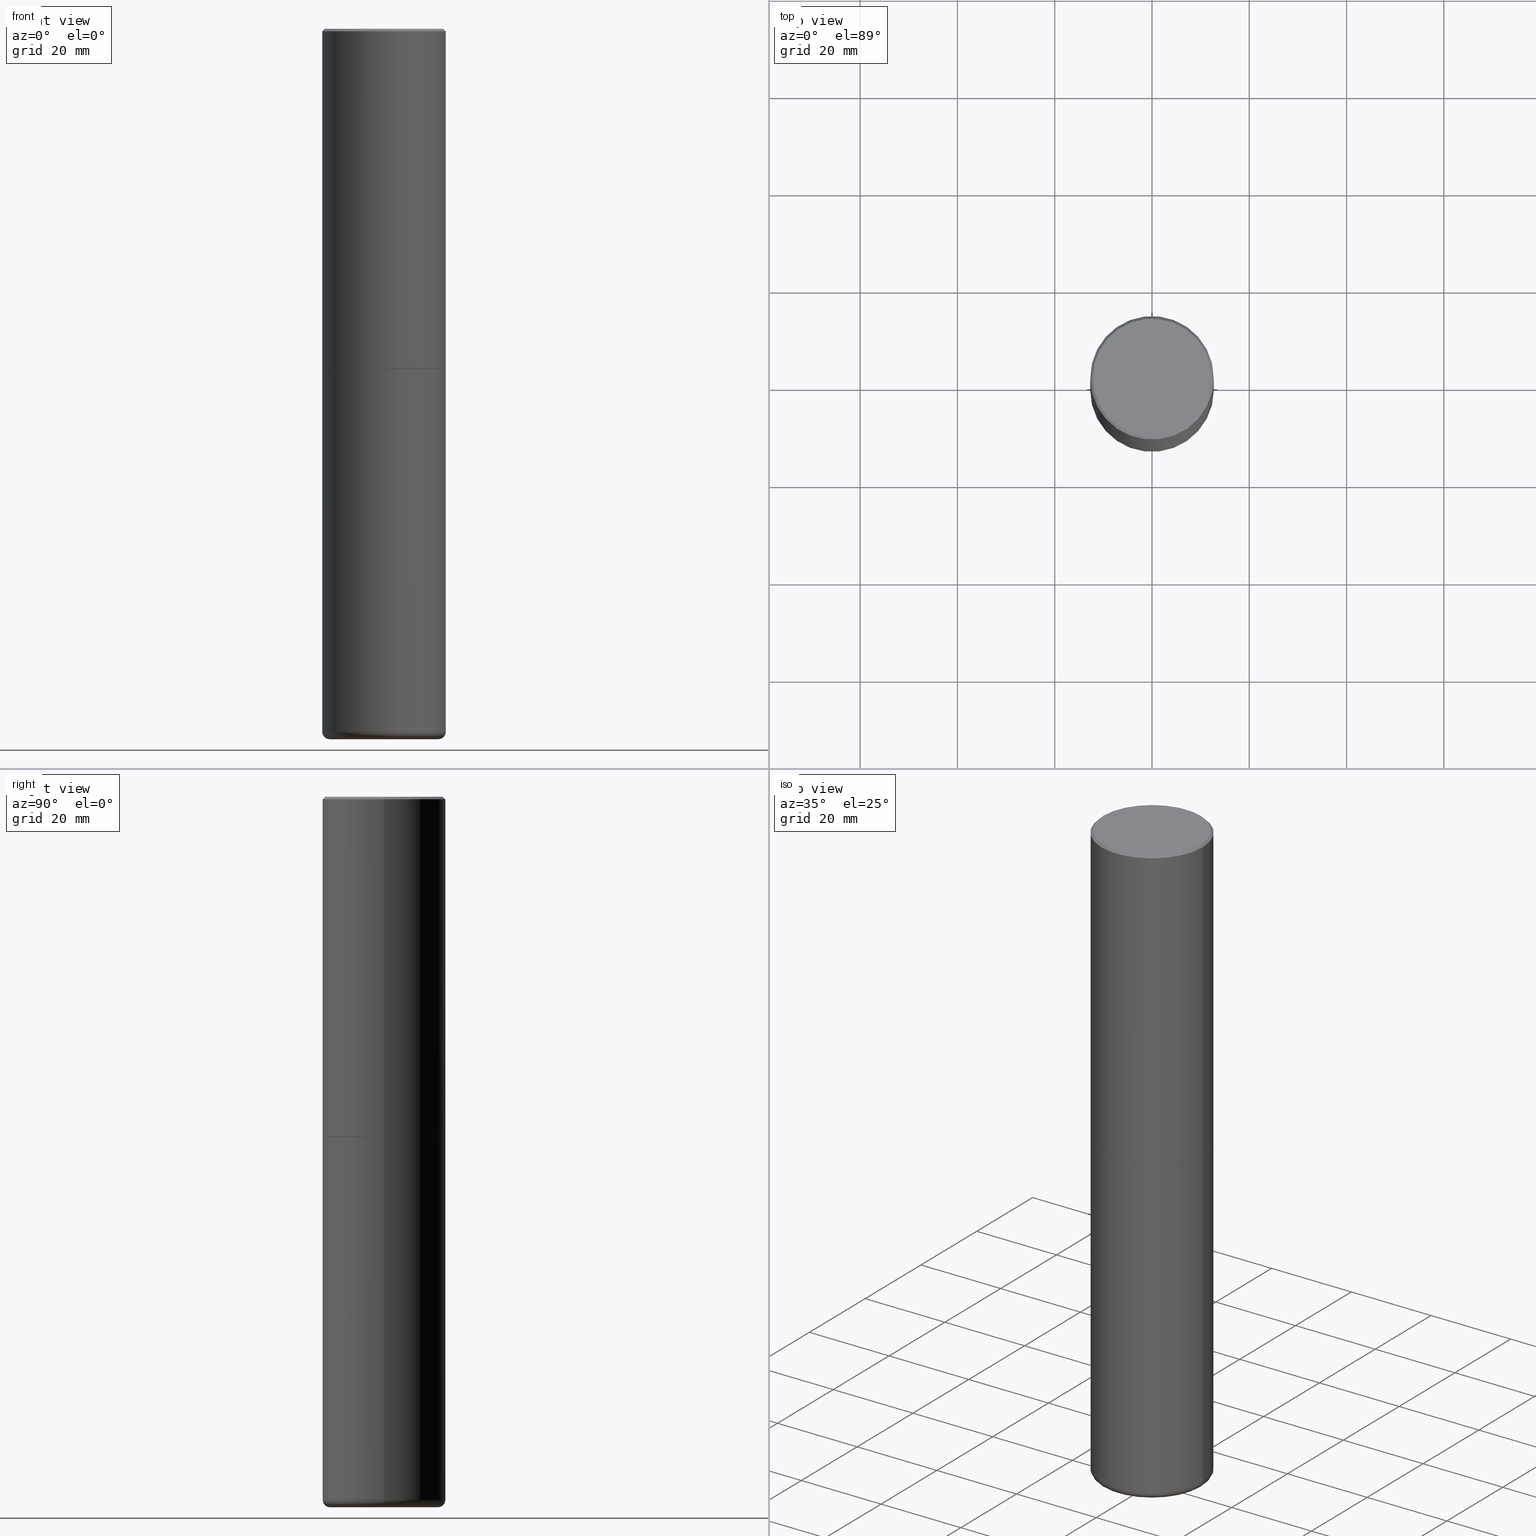
[diagram: canonical four-view strip — front | top / right | iso, engineering-drawing reading convention]
A machine part, canonical four-view strip (front | top / right | iso — engineering-drawing reading convention). The complete STEP part file that produces these views, byte-faithful:
ISO-10303-21;
HEADER;
FILE_DESCRIPTION (( 'STEP AP203' ),
    '1' );
FILE_NAME ('77317.STEP',
    '2024-03-06T17:03:25',
    ( '' ),
    ( '' ),
    'SwSTEP 2.0',
    'SolidWorks 2023',
    '' );
FILE_SCHEMA (( 'CONFIG_CONTROL_DESIGN' ));
ENDSEC;

DATA;
#1 = DIRECTION ( 'NONE',  ( -2.445468806185136877E-29, 3.491481338843145188E-15, 1.000000000000000000 ) ) ;
#2 = PERSON_AND_ORGANIZATION_ROLE ( 'design_owner' ) ;
#3 = CLOSED_SHELL ( 'NONE', ( #229, #74, #30, #265, #250, #293 ) ) ;
#4 = DIMENSIONAL_EXPONENTS ( 1.000000000000000000, 0.000000000000000000, 0.000000000000000000, 0.000000000000000000, 0.000000000000000000, 0.000000000000000000, 0.000000000000000000 ) ;
#5 = CIRCLE ( 'NONE', #327, 0.06000000000000045575 ) ;
#6 = DIRECTION ( 'NONE',  ( 0.7071067811865457964, -7.319954787623249734E-15, -0.7071067811865492381 ) ) ;
#7 = DIRECTION ( 'NONE',  ( -1.000000000000000000, 6.982962677686265922E-15, 0.000000000000000000 ) ) ;
#8 = PERSON ( 'UNSPECIFIED', 'UNSPECIFIED', 'UNSPECIFIED', ('UNSPECIFIED'), ('UNSPECIFIED'), ('UNSPECIFIED') ) ;
#9 = DIRECTION ( 'NONE',  ( 1.000000000000000000, -6.982962677686264344E-15, 4.883557194083111780E-29 ) ) ;
#10 = VECTOR ( 'NONE', #105, 39.37007874015748143 ) ;
#11 = CARTESIAN_POINT ( 'NONE',  ( 4.089694968291764333E-29, -3.435613221068401065E-14, -5.750000000000000888 ) ) ;
#12 = ORIENTED_EDGE ( 'NONE', *, *, #122, .T. ) ;
#13 = DIRECTION ( 'NONE',  ( -1.000000000000000000, 6.982962677686265922E-15, -4.876176775795935793E-29 ) ) ;
#14 = CC_DESIGN_DATE_AND_TIME_ASSIGNMENT ( #259, #227, ( #163 ) ) ;
#15 = DIRECTION ( 'NONE',  ( -2.445468806185136597E-29, 3.491481338843145583E-15, 1.000000000000000000 ) ) ;
#16 = FACE_OUTER_BOUND ( 'NONE', #190, .T. ) ;
#17 = CC_DESIGN_APPROVAL ( #266, ( #163 ) ) ;
#18 = APPROVAL ( #357, 'UNSPECIFIED' ) ;
#19 = DIRECTION ( 'NONE',  ( -1.000000000000000000, 6.982962677686265922E-15, -4.876176775795935793E-29 ) ) ;
#20 = DIRECTION ( 'NONE',  ( -2.445468806185136597E-29, 3.491481338843145583E-15, 1.000000000000000000 ) ) ;
#21 = DIRECTION ( 'NONE',  ( -2.445468806185136597E-29, 3.491481338843145583E-15, 1.000000000000000000 ) ) ;
#22 = ORIENTED_EDGE ( 'NONE', *, *, #318, .F. ) ;
#23 = CARTESIAN_POINT ( 'NONE',  ( 6.725039217009123399E-29, -9.601573681818648281E-15, -2.749999999999999556 ) ) ;
#24 = EDGE_LOOP ( 'NONE', ( #260, #114, #286, #185 ) ) ;
#25 = PERSON_AND_ORGANIZATION ( #8, #201 ) ;
#26 = ORIENTED_EDGE ( 'NONE', *, *, #69, .T. ) ;
#27 = CARTESIAN_POINT ( 'NONE',  ( -0.4989999999999999991, -6.055965430375748360E-15, -2.749999999999999556 ) ) ;
#28 = PERSON_AND_ORGANIZATION_ROLE ( 'design_supplier' ) ;
#29 = LINE ( 'NONE', #156, #238 ) ;
#30 = ADVANCED_FACE ( 'NONE', ( #106 ), #305, .F. ) ;
#31 = VERTEX_POINT ( 'NONE', #276 ) ;
#32 = AXIS2_PLACEMENT_3D ( 'NONE', #143, #397, #240 ) ;
#33 = AXIS2_PLACEMENT_3D ( 'NONE', #91, #88, #314 ) ;
#34 = CC_DESIGN_PERSON_AND_ORGANIZATION_ASSIGNMENT ( #120, #28, ( #262 ) ) ;
#35 = PERSON_AND_ORGANIZATION ( #8, #201 ) ;
#36 = APPROVAL_DATE_TIME ( #350, #18 ) ;
#37 = DIRECTION ( 'NONE',  ( -2.445468806185136877E-29, 3.491481338843145188E-15, 1.000000000000000000 ) ) ;
#38 = FACE_OUTER_BOUND ( 'NONE', #127, .T. ) ;
#39 = VECTOR ( 'NONE', #285, 39.37007874015748143 ) ;
#40 = DIRECTION ( 'NONE',  ( 7.105427357601001859E-15, 1.000000000000000000, -3.491481338843145583E-15 ) ) ;
#41 = DIRECTION ( 'NONE',  ( -2.445468806185136597E-29, 3.491481338843145583E-15, 1.000000000000000000 ) ) ;
#42 = DIRECTION ( 'NONE',  ( -2.445468806185136597E-29, 3.491481338843145583E-15, 1.000000000000000000 ) ) ;
#43 = VECTOR ( 'NONE', #37, 39.37007874015748143 ) ;
#44 = DIRECTION ( 'NONE',  ( 1.000000000000000000, -6.982962677686262766E-15, 0.000000000000000000 ) ) ;
#45 = DIRECTION ( 'NONE',  ( 2.438088387897960049E-29, -3.491481338843145188E-15, -1.000000000000000000 ) ) ;
#46 = EDGE_CURVE ( 'NONE', #349, #61, #131, .T. ) ;
#47 = EDGE_LOOP ( 'NONE', ( #22, #26, #217, #338 ) ) ;
#48 = CARTESIAN_POINT ( 'NONE',  ( -0.5000000000000003331, -1.281242234827830793E-15, -2.748999999999999666 ) ) ;
#49 = AXIS2_PLACEMENT_3D ( 'NONE', #56, #186, #311 ) ;
#50 = AXIS2_PLACEMENT_3D ( 'NONE', #162, #292, #324 ) ;
#51 = CARTESIAN_POINT ( 'NONE',  ( 6.725039217009123399E-29, -9.601573681818648281E-15, -2.749999999999999556 ) ) ;
#52 = ORIENTED_EDGE ( 'NONE', *, *, #63, .T. ) ;
#53 = PLANE ( 'NONE',  #268 ) ;
#54 = DIRECTION ( 'NONE',  ( -2.445468806185136597E-29, 3.491481338843145583E-15, 1.000000000000000000 ) ) ;
#55 = CARTESIAN_POINT ( 'NONE',  ( 6.725039217009123399E-29, -9.601573681818648281E-15, -2.749999999999999556 ) ) ;
#56 = CARTESIAN_POINT ( 'NONE',  ( 4.890937612370299433E-31, -6.982962677686328587E-17, -0.02000000000000010797 ) ) ;
#57 = CONICAL_SURFACE ( 'NONE', #386, 0.5000000000000001110, 0.7853981633974458365 ) ;
#58 = AXIS2_PLACEMENT_3D ( 'NONE', #118, #346, #249 ) ;
#59 = PERSON_AND_ORGANIZATION_ROLE ( 'classification_officer' ) ;
#60 = ORIENTED_EDGE ( 'NONE', *, *, #123, .F. ) ;
#61 = VERTEX_POINT ( 'NONE', #237 ) ;
#62 = ADVANCED_FACE ( 'NONE', ( #367 ), #57, .T. ) ;
#63 = EDGE_CURVE ( 'NONE', #95, #263, #295, .T. ) ;
#64 = SECURITY_CLASSIFICATION_LEVEL ( 'unclassified' ) ;
#65 = EDGE_LOOP ( 'NONE', ( #141, #125, #147, #352 ) ) ;
#66 = APPROVAL_STATUS ( 'not_yet_approved' ) ;
#67 = CIRCLE ( 'NONE', #216, 0.4799999999999999267 ) ;
#68 = COORDINATED_UNIVERSAL_TIME_OFFSET ( 5, 0, .BEHIND. ) ;
#69 = EDGE_CURVE ( 'NONE', #263, #95, #135, .T. ) ;
#70 = CARTESIAN_POINT ( 'NONE',  ( 4.890937612370299433E-31, -6.982962677686328587E-17, -0.02000000000000010797 ) ) ;
#71 = DIRECTION ( 'NONE',  ( 1.000000000000000000, -6.982962677686266711E-15, 4.876176775795935793E-29 ) ) ;
#72 = DIRECTION ( 'NONE',  ( 2.445468806185136597E-29, -3.491481338843145583E-15, -1.000000000000000000 ) ) ;
#73 = VECTOR ( 'NONE', #97, 39.37007874015748143 ) ;
#74 = ADVANCED_FACE ( 'NONE', ( #16 ), #400, .T. ) ;
#75 = ORIENTED_EDGE ( 'NONE', *, *, #409, .T. ) ;
#76 = CARTESIAN_POINT ( 'NONE',  ( 1.391471750719342616E-28, -1.986652881801749632E-14, -5.689999999999999503 ) ) ;
#77 = ORIENTED_EDGE ( 'NONE', *, *, #359, .F. ) ;
#78 = AXIS2_PLACEMENT_3D ( 'NONE', #362, #204, #169 ) ;
#79 = CARTESIAN_POINT ( 'NONE',  ( 0.4989999999999999991, -1.308607205798409720E-14, -2.749999999999999556 ) ) ;
#80 = FACE_OUTER_BOUND ( 'NONE', #65, .T. ) ;
#81 = ADVANCED_FACE ( 'NONE', ( #299 ), #391, .F. ) ;
#82 = CARTESIAN_POINT ( 'NONE',  ( 1.406144563556453767E-28, -2.007601769834809252E-14, -5.750000000000000888 ) ) ;
#83 = DIRECTION ( 'NONE',  ( -2.445468806185136597E-29, 3.491481338843145583E-15, 1.000000000000000000 ) ) ;
#84 = VERTEX_POINT ( 'NONE', #79 ) ;
#85 = AXIS2_PLACEMENT_3D ( 'NONE', #279, #339, #253 ) ;
#86 = DIRECTION ( 'NONE',  ( 1.000000000000000000, -6.982962677686269077E-15, 0.000000000000000000 ) ) ;
#87 = ORIENTED_EDGE ( 'NONE', *, *, #168, .T. ) ;
#88 = DIRECTION ( 'NONE',  ( -2.445468806185136597E-29, 3.491481338843145583E-15, 1.000000000000000000 ) ) ;
#89 = PERSON_AND_ORGANIZATION ( #8, #201 ) ;
#90 = ORIENTED_EDGE ( 'NONE', *, *, #206, .F. ) ;
#91 = CARTESIAN_POINT ( 'NONE',  ( 6.725039217009123399E-29, -9.601573681818648281E-15, -2.749999999999999556 ) ) ;
#92 = CIRCLE ( 'NONE', #326, 0.4989999999999999991 ) ;
#93 = AXIS2_PLACEMENT_3D ( 'NONE', #333, #41, #325 ) ;
#94 = CALENDAR_DATE ( 2024, 6, 3 ) ;
#95 = VERTEX_POINT ( 'NONE', #347 ) ;
#96 = LOCAL_TIME ( 12, 3, 25.00000000000000000, #68 ) ;
#97 = DIRECTION ( 'NONE',  ( -0.7071067811867406405, 7.493145998871051513E-15, 0.7071067811863543939 ) ) ;
#98 = APPLICATION_PROTOCOL_DEFINITION ( 'international standard', 'config_control_design', 1994, #193 ) ;
#99 = VERTEX_POINT ( 'NONE', #144 ) ;
#100 = CC_DESIGN_DATE_AND_TIME_ASSIGNMENT ( #290, #417, ( #180 ) ) ;
#101 = APPROVAL_ROLE ( '' ) ;
#102 = CONICAL_SURFACE ( 'NONE', #254, 0.5000000000000001110, 0.7853981633974458365 ) ;
#103 = EDGE_CURVE ( 'NONE', #360, #343, #178, .T. ) ;
#104 = CIRCLE ( 'NONE', #78, 0.4989999999999999991 ) ;
#105 = DIRECTION ( 'NONE',  ( -2.445468806185136877E-29, 3.491481338843145188E-15, 1.000000000000000000 ) ) ;
#106 = FACE_OUTER_BOUND ( 'NONE', #313, .T. ) ;
#107 = DIRECTION ( 'NONE',  ( -2.445468806185136597E-29, 3.491481338843145583E-15, 1.000000000000000000 ) ) ;
#108 = EDGE_CURVE ( 'NONE', #84, #137, #92, .T. ) ;
#109 =( GEOMETRIC_REPRESENTATION_CONTEXT ( 3 ) GLOBAL_UNCERTAINTY_ASSIGNED_CONTEXT ( ( #170 ) ) GLOBAL_UNIT_ASSIGNED_CONTEXT ( ( #113, #142, #215 ) ) REPRESENTATION_CONTEXT ( 'NONE', 'WORKASPACE' ) );
#110 = FACE_OUTER_BOUND ( 'NONE', #385, .T. ) ;
#111 = VERTEX_POINT ( 'NONE', #256 ) ;
#112 = MANIFOLD_SOLID_BREP ( 'Body-Move/Copy2[1]', #3 ) ;
#113 =( CONVERSION_BASED_UNIT ( 'INCH', #368 ) LENGTH_UNIT ( ) NAMED_UNIT ( #4 ) );
#114 = ORIENTED_EDGE ( 'NONE', *, *, #409, .F. ) ;
#115 = MANIFOLD_SOLID_BREP ( 'Body-Move/Copy2[2]', #245 ) ;
#116 = CARTESIAN_POINT ( 'NONE',  ( 0.000000000000000000, 0.000000000000000000, 0.000000000000000000 ) ) ;
#117 = AXIS2_PLACEMENT_3D ( 'NONE', #23, #21, #366 ) ;
#118 = CARTESIAN_POINT ( 'NONE',  ( 0.000000000000000000, 0.000000000000000000, 0.000000000000000000 ) ) ;
#119 = ORIENTED_EDGE ( 'NONE', *, *, #370, .F. ) ;
#120 = PERSON_AND_ORGANIZATION ( #8, #201 ) ;
#121 = ORIENTED_EDGE ( 'NONE', *, *, #329, .F. ) ;
#122 = EDGE_CURVE ( 'NONE', #331, #343, #200, .T. ) ;
#123 = EDGE_CURVE ( 'NONE', #343, #331, #415, .T. ) ;
#124 = PERSON_AND_ORGANIZATION ( #8, #201 ) ;
#125 = ORIENTED_EDGE ( 'NONE', *, *, #226, .T. ) ;
#126 = LOCAL_TIME ( 12, 3, 25.00000000000000000, #323 ) ;
#127 = EDGE_LOOP ( 'NONE', ( #407, #150 ) ) ;
#128 = APPROVAL_PERSON_ORGANIZATION ( #196, #18, #322 ) ;
#129 = PERSON_AND_ORGANIZATION ( #8, #201 ) ;
#130 = COORDINATED_UNIVERSAL_TIME_OFFSET ( 5, 0, .BEHIND. ) ;
#131 = CIRCLE ( 'NONE', #270, 0.5000000000000003331 ) ;
#132 = LINE ( 'NONE', #158, #354 ) ;
#133 = FACE_OUTER_BOUND ( 'NONE', #214, .T. ) ;
#134 = DIRECTION ( 'NONE',  ( 1.000000000000000000, -6.982962677686264344E-15, 4.883557194083111780E-29 ) ) ;
#135 = CIRCLE ( 'NONE', #179, 0.4400000000000000022 ) ;
#136 = CARTESIAN_POINT ( 'NONE',  ( 0.000000000000000000, 0.000000000000000000, 0.000000000000000000 ) ) ;
#137 = VERTEX_POINT ( 'NONE', #412 ) ;
#138 = APPROVAL_PERSON_ORGANIZATION ( #89, #266, #101 ) ;
#139 = DIRECTION ( 'NONE',  ( -2.445468806185136597E-29, 3.491481338843145583E-15, 1.000000000000000000 ) ) ;
#140 = LINE ( 'NONE', #275, #300 ) ;
#141 = ORIENTED_EDGE ( 'NONE', *, *, #167, .F. ) ;
#142 =( NAMED_UNIT ( * ) PLANE_ANGLE_UNIT ( ) SI_UNIT ( $, .RADIAN. ) );
#143 = CARTESIAN_POINT ( 'NONE',  ( 6.725039217009123399E-29, -9.601573681818648281E-15, -2.749999999999999556 ) ) ;
#144 = CARTESIAN_POINT ( 'NONE',  ( 0.4799999999999999267, -3.396558832296482099E-15, 1.195183497228351200E-16 ) ) ;
#145 = CIRCLE ( 'NONE', #85, 0.4799999999999999267 ) ;
#146 = DIRECTION ( 'NONE',  ( 1.000000000000000000, -6.982962677686280121E-15, 0.000000000000000000 ) ) ;
#147 = ORIENTED_EDGE ( 'NONE', *, *, #219, .T. ) ;
#148 = DIRECTION ( 'NONE',  ( -2.438088387897960049E-29, 3.491481338843145188E-15, 1.000000000000000000 ) ) ;
#149 = CARTESIAN_POINT ( 'NONE',  ( -2.922783960138615261E-45, 4.172960877065252270E-31, 1.195183497228115035E-16 ) ) ;
#150 = ORIENTED_EDGE ( 'NONE', *, *, #69, .F. ) ;
#151 = CC_DESIGN_PERSON_AND_ORGANIZATION_ASSIGNMENT ( #124, #59, ( #180 ) ) ;
#152 = AXIS2_PLACEMENT_3D ( 'NONE', #166, #301, #390 ) ;
#153 = LINE ( 'NONE', #308, #210 ) ;
#154 = ADVANCED_FACE ( 'NONE', ( #377 ), #288, .T. ) ;
#155 = ORIENTED_EDGE ( 'NONE', *, *, #108, .T. ) ;
#156 = CARTESIAN_POINT ( 'NONE',  ( 0.5000000000000002220, -3.491481338843134933E-15, 2.438088387897969017E-29 ) ) ;
#157 = ORIENTED_EDGE ( 'NONE', *, *, #46, .T. ) ;
#158 = CARTESIAN_POINT ( 'NONE',  ( 0.4989999999999999991, -1.308607205798409720E-14, -2.749999999999999556 ) ) ;
#159 = DATE_AND_TIME ( #94, #372 ) ;
#160 = APPROVAL_DATE_TIME ( #159, #266 ) ;
#161 = DESIGN_CONTEXT ( 'detailed design', #193, 'design' ) ;
#162 = CARTESIAN_POINT ( 'NONE',  ( 1.391471750719342616E-28, -1.986652881801749632E-14, -5.689999999999999503 ) ) ;
#163 = PRODUCT_DEFINITION ( 'UNKNOWN', '', #262, #161 ) ;
#164 = AXIS2_PLACEMENT_3D ( 'NONE', #82, #42, #302 ) ;
#165 = AXIS2_PLACEMENT_3D ( 'NONE', #116, #221, #410 ) ;
#166 = CARTESIAN_POINT ( 'NONE',  ( 0.000000000000000000, 0.000000000000000000, 0.000000000000000000 ) ) ;
#167 = EDGE_CURVE ( 'NONE', #137, #349, #383, .T. ) ;
#168 = EDGE_CURVE ( 'NONE', #111, #218, #365, .T. ) ;
#169 = DIRECTION ( 'NONE',  ( 1.000000000000000000, -6.982962677686269077E-15, 0.000000000000000000 ) ) ;
#170 = UNCERTAINTY_MEASURE_WITH_UNIT (LENGTH_MEASURE( 1.000000000000000082E-05 ), #113, 'distance_accuracy_value', 'NONE');
#171 = CYLINDRICAL_SURFACE ( 'NONE', #416, 0.5000000000000000000 ) ;
#172 = FACE_OUTER_BOUND ( 'NONE', #396, .T. ) ;
#173 = AXIS2_PLACEMENT_3D ( 'NONE', #11, #175, #13 ) ;
#174 = ORIENTED_EDGE ( 'NONE', *, *, #388, .T. ) ;
#175 = DIRECTION ( 'NONE',  ( 2.438088387897960049E-29, -3.491481338843145188E-15, -1.000000000000000000 ) ) ;
#176 = DIRECTION ( 'NONE',  ( 1.000000000000000000, -6.982962677686263555E-15, 0.000000000000000000 ) ) ;
#177 = VERTEX_POINT ( 'NONE', #192 ) ;
#178 = LINE ( 'NONE', #340, #39 ) ;
#179 = AXIS2_PLACEMENT_3D ( 'NONE', #203, #139, #44 ) ;
#180 = SECURITY_CLASSIFICATION ( '', '', #64 ) ;
#181 = DIRECTION ( 'NONE',  ( 1.000000000000000000, -6.982962677686266711E-15, 0.000000000000000000 ) ) ;
#182 = ORIENTED_EDGE ( 'NONE', *, *, #329, .T. ) ;
#183 = CC_DESIGN_PERSON_AND_ORGANIZATION_ASSIGNMENT ( #25, #353, ( #262 ) ) ;
#184 = FACE_OUTER_BOUND ( 'NONE', #212, .T. ) ;
#185 = ORIENTED_EDGE ( 'NONE', *, *, #123, .T. ) ;
#186 = DIRECTION ( 'NONE',  ( -2.445468806185136597E-29, 3.491481338843145583E-15, 1.000000000000000000 ) ) ;
#187 = DIRECTION ( 'NONE',  ( -2.445468806185136597E-29, 3.491481338843145583E-15, 1.000000000000000000 ) ) ;
#188 = EDGE_CURVE ( 'NONE', #61, #331, #29, .T. ) ;
#189 = CIRCLE ( 'NONE', #335, 0.06000000000000045575 ) ;
#190 = EDGE_LOOP ( 'NONE', ( #52, #277, #310, #119 ) ) ;
#191 = APPROVAL_STATUS ( 'not_yet_approved' ) ;
#192 = CARTESIAN_POINT ( 'NONE',  ( 0.5000000000000000000, -1.309305502066178164E-14, -2.749999999999999556 ) ) ;
#193 = APPLICATION_CONTEXT ( 'configuration controlled 3d designs of mechanical parts and assemblies' ) ;
#194 = LOCAL_TIME ( 12, 3, 25.00000000000000000, #130 ) ;
#195 = AXIS2_PLACEMENT_3D ( 'NONE', #398, #83, #176 ) ;
#196 = PERSON_AND_ORGANIZATION ( #8, #201 ) ;
#197 = CALENDAR_DATE ( 2024, 6, 3 ) ;
#198 = FACE_OUTER_BOUND ( 'NONE', #225, .T. ) ;
#199 = APPLICATION_CONTEXT ( 'configuration controlled 3d designs of mechanical parts and assemblies' ) ;
#200 = CIRCLE ( 'NONE', #261, 0.5000000000000001110 ) ;
#201 = ORGANIZATION ( 'UNSPECIFIED', 'UNSPECIFIED', '' ) ;
#202 = CARTESIAN_POINT ( 'NONE',  ( -0.4400000000000000022, -1.674014078067305588E-14, -5.689999999999999503 ) ) ;
#203 = CARTESIAN_POINT ( 'NONE',  ( 1.406144563556453767E-28, -2.007601769834809252E-14, -5.750000000000000888 ) ) ;
#204 = DIRECTION ( 'NONE',  ( -2.445468806185136597E-29, 3.491481338843145583E-15, 1.000000000000000000 ) ) ;
#205 = CARTESIAN_POINT ( 'NONE',  ( 4.890937612370299433E-31, -6.982962677686328587E-17, -0.02000000000000010797 ) ) ;
#206 = EDGE_CURVE ( 'NONE', #218, #31, #234, .T. ) ;
#207 = DIRECTION ( 'NONE',  ( -2.445468806185136597E-29, 3.491481338843145583E-15, 1.000000000000000000 ) ) ;
#208 = DIRECTION ( 'NONE',  ( 1.000000000000000000, -6.982962677686265922E-15, 0.000000000000000000 ) ) ;
#209 = CARTESIAN_POINT ( 'NONE',  ( -0.5000000000000002220, 3.552713678800502507E-15, -2.459467545127454012E-29 ) ) ;
#210 = VECTOR ( 'NONE', #373, 39.37007874015748143 ) ;
#211 = CARTESIAN_POINT ( 'NONE',  ( 0.4400000000000000022, -2.293903239619945620E-14, -5.689999999999999503 ) ) ;
#212 = EDGE_LOOP ( 'NONE', ( #75, #251 ) ) ;
#213 = CYLINDRICAL_SURFACE ( 'NONE', #58, 0.5000000000000002220 ) ;
#214 = EDGE_LOOP ( 'NONE', ( #291, #157, #220, #60 ) ) ;
#215 =( NAMED_UNIT ( * ) SI_UNIT ( $, .STERADIAN. ) SOLID_ANGLE_UNIT ( ) );
#216 = AXIS2_PLACEMENT_3D ( 'NONE', #149, #402, #309 ) ;
#217 = ORIENTED_EDGE ( 'NONE', *, *, #370, .T. ) ;
#218 = VERTEX_POINT ( 'NONE', #294 ) ;
#219 = EDGE_CURVE ( 'NONE', #84, #61, #132, .T. ) ;
#220 = ORIENTED_EDGE ( 'NONE', *, *, #188, .T. ) ;
#221 = DIRECTION ( 'NONE',  ( 0.000000000000000000, 0.000000000000000000, 1.000000000000000000 ) ) ;
#222 = AXIS2_PLACEMENT_3D ( 'NONE', #274, #107, #9 ) ;
#223 = CIRCLE ( 'NONE', #93, 0.5000000000000003331 ) ;
#224 = DATE_AND_TIME ( #351, #126 ) ;
#225 = EDGE_LOOP ( 'NONE', ( #87, #258, #255, #413 ) ) ;
#226 = EDGE_CURVE ( 'NONE', #137, #84, #104, .T. ) ;
#227 = DATE_TIME_ROLE ( 'creation_date' ) ;
#228 = ORIENTED_EDGE ( 'NONE', *, *, #103, .F. ) ;
#229 = ADVANCED_FACE ( 'NONE', ( #198 ), #171, .T. ) ;
#230 = PERSON_AND_ORGANIZATION ( #8, #201 ) ;
#231 = EDGE_CURVE ( 'NONE', #349, #343, #241, .T. ) ;
#232 = CIRCLE ( 'NONE', #271, 0.5000000000000000000 ) ;
#233 = COORDINATED_UNIVERSAL_TIME_OFFSET ( 5, 0, .BEHIND. ) ;
#234 = LINE ( 'NONE', #287, #43 ) ;
#235 = ADVANCED_FACE ( 'NONE', ( #298 ), #102, .T. ) ;
#236 = CYLINDRICAL_SURFACE ( 'NONE', #393, 0.5000000000000002220 ) ;
#237 = CARTESIAN_POINT ( 'NONE',  ( 0.5000000000000003331, -1.308956353932294179E-14, -2.748999999999999666 ) ) ;
#238 = VECTOR ( 'NONE', #1, 39.37007874015748143 ) ;
#239 = FACE_OUTER_BOUND ( 'NONE', #47, .T. ) ;
#240 = DIRECTION ( 'NONE',  ( -1.000000000000000000, 6.982962677686265922E-15, -4.876176775795935793E-29 ) ) ;
#241 = LINE ( 'NONE', #209, #10 ) ;
#242 = CARTESIAN_POINT ( 'NONE',  ( 6.725039217009123399E-29, -9.601573681818648281E-15, -2.749999999999999556 ) ) ;
#243 = CC_DESIGN_PERSON_AND_ORGANIZATION_ASSIGNMENT ( #230, #2, ( #378 ) ) ;
#244 = DIRECTION ( 'NONE',  ( 1.000000000000000000, -6.982962677686265922E-15, 4.876176775795935793E-29 ) ) ;
#245 = CLOSED_SHELL ( 'NONE', ( #154, #371, #235, #62, #304, #330, #81, #403 ) ) ;
#246 = DIRECTION ( 'NONE',  ( -1.000000000000000000, 7.105427357601001859E-15, 0.000000000000000000 ) ) ;
#247 = AXIS2_PLACEMENT_3D ( 'NONE', #312, #15, #86 ) ;
#248 = ORIENTED_EDGE ( 'NONE', *, *, #188, .F. ) ;
#249 = DIRECTION ( 'NONE',  ( 1.000000000000000000, -6.982962677686266711E-15, 4.876176775795935793E-29 ) ) ;
#250 = ADVANCED_FACE ( 'NONE', ( #239 ), #342, .T. ) ;
#251 = ORIENTED_EDGE ( 'NONE', *, *, #359, .T. ) ;
#252 = ORIENTED_EDGE ( 'NONE', *, *, #167, .T. ) ;
#253 = DIRECTION ( 'NONE',  ( 1.000000000000000000, -6.982962677686266711E-15, 4.874852205035277589E-29 ) ) ;
#254 = AXIS2_PLACEMENT_3D ( 'NONE', #70, #296, #7 ) ;
#255 = ORIENTED_EDGE ( 'NONE', *, *, #387, .F. ) ;
#256 = CARTESIAN_POINT ( 'NONE',  ( 0.5000000000000002220, -2.335801015686062967E-14, -5.689999999999999503 ) ) ;
#257 = SHAPE_DEFINITION_REPRESENTATION ( #316, #356 ) ;
#258 = ORIENTED_EDGE ( 'NONE', *, *, #206, .T. ) ;
#259 = DATE_AND_TIME ( #267, #194 ) ;
#260 = ORIENTED_EDGE ( 'NONE', *, *, #297, .F. ) ;
#261 = AXIS2_PLACEMENT_3D ( 'NONE', #404, #54, #380 ) ;
#262 = PRODUCT_DEFINITION_FORMATION_WITH_SPECIFIED_SOURCE ( 'ANY', '', #378, .NOT_KNOWN. ) ;
#263 = VERTEX_POINT ( 'NONE', #389 ) ;
#264 = EDGE_CURVE ( 'NONE', #61, #349, #223, .T. ) ;
#265 = ADVANCED_FACE ( 'NONE', ( #172 ), #336, .T. ) ;
#266 = APPROVAL ( #66, 'UNSPECIFIED' ) ;
#267 = CALENDAR_DATE ( 2024, 6, 3 ) ;
#268 = AXIS2_PLACEMENT_3D ( 'NONE', #337, #45, #19 ) ;
#269 = DIRECTION ( 'NONE',  ( 0.7071067811867406405, -2.468850131084279700E-15, 0.7071067811863543939 ) ) ;
#270 = AXIS2_PLACEMENT_3D ( 'NONE', #278, #364, #208 ) ;
#271 = AXIS2_PLACEMENT_3D ( 'NONE', #55, #187, #181 ) ;
#272 = DIRECTION ( 'NONE',  ( 1.000000000000000000, -6.982962677686266711E-15, 4.876176775795935793E-29 ) ) ;
#273 = EDGE_LOOP ( 'NONE', ( #77, #382, #12, #228 ) ) ;
#274 = CARTESIAN_POINT ( 'NONE',  ( 1.391471750719342616E-28, -1.986652881801749632E-14, -5.689999999999999503 ) ) ;
#275 = CARTESIAN_POINT ( 'NONE',  ( 0.5000000000000001110, -3.500078625662629868E-15, -0.02000000000000010797 ) ) ;
#276 = CARTESIAN_POINT ( 'NONE',  ( -0.5000000000000000000, -1.118133757111757137E-14, -2.749999999999999556 ) ) ;
#277 = ORIENTED_EDGE ( 'NONE', *, *, #318, .T. ) ;
#278 = CARTESIAN_POINT ( 'NONE',  ( 6.722593748202938917E-29, -9.598082200479805274E-15, -2.748999999999999666 ) ) ;
#279 = CARTESIAN_POINT ( 'NONE',  ( -2.922783960138615261E-45, 4.172960877065252270E-31, 1.195183497228115035E-16 ) ) ;
#280 = CARTESIAN_POINT ( 'NONE',  ( 0.5000000000000001110, -3.500078625662629868E-15, -0.02000000000000010797 ) ) ;
#281 = DIRECTION ( 'NONE',  ( 1.000000000000000000, -6.982962677686269077E-15, 0.000000000000000000 ) ) ;
#282 = CARTESIAN_POINT ( 'NONE',  ( -0.4799999999999999267, 3.386736898677839197E-15, 1.195183497227879609E-16 ) ) ;
#283 = ORIENTED_EDGE ( 'NONE', *, *, #264, .T. ) ;
#284 = CALENDAR_DATE ( 2024, 6, 3 ) ;
#285 = DIRECTION ( 'NONE',  ( -0.7071067811865457964, 2.468850131082238917E-15, -0.7071067811865492381 ) ) ;
#286 = ORIENTED_EDGE ( 'NONE', *, *, #103, .T. ) ;
#287 = CARTESIAN_POINT ( 'NONE',  ( -0.5000000000000000000, 3.552713678800500929E-15, -2.459467545127452891E-29 ) ) ;
#288 = CONICAL_SURFACE ( 'NONE', #33, 0.4989999999999999991, 0.7853981633977213939 ) ;
#289 = CC_DESIGN_SECURITY_CLASSIFICATION ( #180, ( #262 ) ) ;
#290 = DATE_AND_TIME ( #284, #355 ) ;
#291 = ORIENTED_EDGE ( 'NONE', *, *, #231, .F. ) ;
#292 = DIRECTION ( 'NONE',  ( -2.445468806185136597E-29, 3.491481338843145583E-15, 1.000000000000000000 ) ) ;
#293 = ADVANCED_FACE ( 'NONE', ( #38 ), #303, .T. ) ;
#294 = CARTESIAN_POINT ( 'NONE',  ( -0.5000000000000002220, -1.631381513921699223E-14, -5.689999999999999503 ) ) ;
#295 = CIRCLE ( 'NONE', #164, 0.4400000000000000022 ) ;
#296 = DIRECTION ( 'NONE',  ( 2.445468806185136597E-29, -3.491481338843145583E-15, -1.000000000000000000 ) ) ;
#297 = EDGE_CURVE ( 'NONE', #99, #331, #140, .T. ) ;
#298 = FACE_OUTER_BOUND ( 'NONE', #273, .T. ) ;
#299 = FACE_OUTER_BOUND ( 'NONE', #317, .T. ) ;
#300 = VECTOR ( 'NONE', #6, 39.37007874015748143 ) ;
#301 = DIRECTION ( 'NONE',  ( -2.445468806185136597E-29, 3.491481338843145583E-15, 1.000000000000000000 ) ) ;
#302 = DIRECTION ( 'NONE',  ( 1.000000000000000000, -6.982962677686262766E-15, 0.000000000000000000 ) ) ;
#303 = PLANE ( 'NONE',  #173 ) ;
#304 = ADVANCED_FACE ( 'NONE', ( #133 ), #236, .T. ) ;
#305 = PLANE ( 'NONE',  #32 ) ;
#306 = ORIENTED_EDGE ( 'NONE', *, *, #231, .T. ) ;
#307 = APPROVAL_PERSON_ORGANIZATION ( #35, #332, #381 ) ;
#308 = CARTESIAN_POINT ( 'NONE',  ( 0.5000000000000000000, -3.491481338843133355E-15, 2.438088387897967896E-29 ) ) ;
#309 = DIRECTION ( 'NONE',  ( 1.000000000000000000, -6.982962677686266711E-15, 4.874852205035277589E-29 ) ) ;
#310 = ORIENTED_EDGE ( 'NONE', *, *, #168, .F. ) ;
#311 = DIRECTION ( 'NONE',  ( 1.000000000000000000, -6.982962677686265922E-15, 0.000000000000000000 ) ) ;
#312 = CARTESIAN_POINT ( 'NONE',  ( 6.725039217009123399E-29, -9.601573681818648281E-15, -2.749999999999999556 ) ) ;
#313 = EDGE_LOOP ( 'NONE', ( #321, #182 ) ) ;
#314 = DIRECTION ( 'NONE',  ( 1.000000000000000000, -6.982962677686269077E-15, 0.000000000000000000 ) ) ;
#315 = AXIS2_PLACEMENT_3D ( 'NONE', #76, #207, #134 ) ;
#316 = PRODUCT_DEFINITION_SHAPE ( 'NONE', 'NONE',  #163 ) ;
#317 = EDGE_LOOP ( 'NONE', ( #345, #411 ) ) ;
#318 = EDGE_CURVE ( 'NONE', #263, #218, #5, .T. ) ;
#319 = PERSON_AND_ORGANIZATION_ROLE ( 'creator' ) ;
#320 = ORIENTED_EDGE ( 'NONE', *, *, #408, .T. ) ;
#321 = ORIENTED_EDGE ( 'NONE', *, *, #387, .T. ) ;
#322 = APPROVAL_ROLE ( '' ) ;
#323 = COORDINATED_UNIVERSAL_TIME_OFFSET ( 5, 0, .BEHIND. ) ;
#324 = DIRECTION ( 'NONE',  ( 1.000000000000000000, -6.982962677686263555E-15, 0.000000000000000000 ) ) ;
#325 = DIRECTION ( 'NONE',  ( 1.000000000000000000, -6.982962677686265922E-15, 0.000000000000000000 ) ) ;
#326 = AXIS2_PLACEMENT_3D ( 'NONE', #51, #20, #281 ) ;
#327 = AXIS2_PLACEMENT_3D ( 'NONE', #202, #40, #246 ) ;
#328 = CARTESIAN_POINT ( 'NONE',  ( 0.000000000000000000, 0.000000000000000000, 0.000000000000000000 ) ) ;
#329 = EDGE_CURVE ( 'NONE', #31, #177, #401, .T. ) ;
#330 = ADVANCED_FACE ( 'NONE', ( #80 ), #405, .T. ) ;
#331 = VERTEX_POINT ( 'NONE', #280 ) ;
#332 = APPROVAL ( #191, 'UNSPECIFIED' ) ;
#333 = CARTESIAN_POINT ( 'NONE',  ( 6.722593748202938917E-29, -9.598082200479805274E-15, -2.748999999999999666 ) ) ;
#334 = DIRECTION ( 'NONE',  ( -1.000000000000000000, 6.982962677686265922E-15, 0.000000000000000000 ) ) ;
#335 = AXIS2_PLACEMENT_3D ( 'NONE', #211, #344, #146 ) ;
#336 = CYLINDRICAL_SURFACE ( 'NONE', #152, 0.5000000000000000000 ) ;
#337 = CARTESIAN_POINT ( 'NONE',  ( 3.351822085289407153E-15, 0.4799999999999999267, -1.616151867783303914E-15 ) ) ;
#338 = ORIENTED_EDGE ( 'NONE', *, *, #408, .F. ) ;
#339 = DIRECTION ( 'NONE',  ( -2.445468806185136597E-29, 3.491481338843145583E-15, 1.000000000000000000 ) ) ;
#340 = CARTESIAN_POINT ( 'NONE',  ( -0.5000000000000001110, 3.421651712066270452E-15, -0.02000000000000010797 ) ) ;
#341 = AXIS2_PLACEMENT_3D ( 'NONE', #242, #148, #244 ) ;
#342 = TOROIDAL_SURFACE ( 'NONE', #315, 0.4400000000000000022, 0.06000000000000045575 ) ;
#343 = VERTEX_POINT ( 'NONE', #406 ) ;
#344 = DIRECTION ( 'NONE',  ( -6.982962677686266711E-15, -1.000000000000000000, 3.491481338843145583E-15 ) ) ;
#345 = ORIENTED_EDGE ( 'NONE', *, *, #108, .F. ) ;
#346 = DIRECTION ( 'NONE',  ( -2.445468806185136597E-29, 3.491481338843145583E-15, 1.000000000000000000 ) ) ;
#347 = CARTESIAN_POINT ( 'NONE',  ( 0.4400000000000000022, -2.314852127653004609E-14, -5.750000000000000888 ) ) ;
#348 = APPROVAL_DATE_TIME ( #224, #332 ) ;
#349 = VERTEX_POINT ( 'NONE', #48 ) ;
#350 = DATE_AND_TIME ( #197, #96 ) ;
#351 = CALENDAR_DATE ( 2024, 6, 3 ) ;
#352 = ORIENTED_EDGE ( 'NONE', *, *, #46, .F. ) ;
#353 = PERSON_AND_ORGANIZATION_ROLE ( 'creator' ) ;
#354 = VECTOR ( 'NONE', #269, 39.37007874015748143 ) ;
#355 = LOCAL_TIME ( 12, 3, 25.00000000000000000, #233 ) ;
#356 = ADVANCED_BREP_SHAPE_REPRESENTATION ( '77317', ( #112, #115, #165 ), #109 ) ;
#357 = APPROVAL_STATUS ( 'not_yet_approved' ) ;
#358 = DIRECTION ( 'NONE',  ( -2.445468806185136597E-29, 3.491481338843145583E-15, 1.000000000000000000 ) ) ;
#359 = EDGE_CURVE ( 'NONE', #99, #360, #67, .T. ) ;
#360 = VERTEX_POINT ( 'NONE', #282 ) ;
#361 = CC_DESIGN_APPROVAL ( #332, ( #262 ) ) ;
#362 = CARTESIAN_POINT ( 'NONE',  ( 6.725039217009123399E-29, -9.601573681818648281E-15, -2.749999999999999556 ) ) ;
#363 = CC_DESIGN_PERSON_AND_ORGANIZATION_ASSIGNMENT ( #129, #319, ( #163 ) ) ;
#364 = DIRECTION ( 'NONE',  ( -2.445468806185136597E-29, 3.491481338843145583E-15, 1.000000000000000000 ) ) ;
#365 = CIRCLE ( 'NONE', #50, 0.4999999999999999445 ) ;
#366 = DIRECTION ( 'NONE',  ( 1.000000000000000000, -6.982962677686266711E-15, 0.000000000000000000 ) ) ;
#367 = FACE_OUTER_BOUND ( 'NONE', #24, .T. ) ;
#368 = LENGTH_MEASURE_WITH_UNIT ( LENGTH_MEASURE( 0.02539999999999999897 ), #375 );
#369 = APPLICATION_PROTOCOL_DEFINITION ( 'international standard', 'config_control_design', 1994, #199 ) ;
#370 = EDGE_CURVE ( 'NONE', #95, #111, #189, .T. ) ;
#371 = ADVANCED_FACE ( 'NONE', ( #110 ), #213, .T. ) ;
#372 = LOCAL_TIME ( 12, 3, 25.00000000000000000, #384 ) ;
#373 = DIRECTION ( 'NONE',  ( -2.445468806185136877E-29, 3.491481338843145188E-15, 1.000000000000000000 ) ) ;
#374 = CIRCLE ( 'NONE', #195, 0.4999999999999999445 ) ;
#375 =( LENGTH_UNIT ( ) NAMED_UNIT ( * ) SI_UNIT ( $, .METRE. ) );
#376 = ORIENTED_EDGE ( 'NONE', *, *, #219, .F. ) ;
#377 = FACE_OUTER_BOUND ( 'NONE', #414, .T. ) ;
#378 = PRODUCT ( '77317', '77317', '', ( #379 ) ) ;
#379 = MECHANICAL_CONTEXT ( 'NONE', #199, 'mechanical' ) ;
#380 = DIRECTION ( 'NONE',  ( 1.000000000000000000, -6.982962677686265922E-15, 0.000000000000000000 ) ) ;
#381 = APPROVAL_ROLE ( '' ) ;
#382 = ORIENTED_EDGE ( 'NONE', *, *, #297, .T. ) ;
#383 = LINE ( 'NONE', #27, #73 ) ;
#384 = COORDINATED_UNIVERSAL_TIME_OFFSET ( 5, 0, .BEHIND. ) ;
#385 = EDGE_LOOP ( 'NONE', ( #283, #306, #418, #248 ) ) ;
#386 = AXIS2_PLACEMENT_3D ( 'NONE', #205, #72, #334 ) ;
#387 = EDGE_CURVE ( 'NONE', #177, #31, #232, .T. ) ;
#388 = EDGE_CURVE ( 'NONE', #111, #177, #153, .T. ) ;
#389 = CARTESIAN_POINT ( 'NONE',  ( -0.4400000000000000022, -1.663172240011032058E-14, -5.750000000000000888 ) ) ;
#390 = DIRECTION ( 'NONE',  ( 1.000000000000000000, -6.982962677686266711E-15, 4.876176775795935793E-29 ) ) ;
#391 = PLANE ( 'NONE',  #341 ) ;
#392 = PRODUCT_RELATED_PRODUCT_CATEGORY ( 'detail', '', ( #378 ) ) ;
#393 = AXIS2_PLACEMENT_3D ( 'NONE', #328, #358, #71 ) ;
#394 = CC_DESIGN_APPROVAL ( #18, ( #180 ) ) ;
#395 = DIRECTION ( 'NONE',  ( -2.445468806185136597E-29, 3.491481338843145583E-15, 1.000000000000000000 ) ) ;
#396 = EDGE_LOOP ( 'NONE', ( #90, #320, #174, #121 ) ) ;
#397 = DIRECTION ( 'NONE',  ( 2.438088387897960049E-29, -3.491481338843145188E-15, -1.000000000000000000 ) ) ;
#398 = CARTESIAN_POINT ( 'NONE',  ( 1.391471750719342616E-28, -1.986652881801749632E-14, -5.689999999999999503 ) ) ;
#399 = ORIENTED_EDGE ( 'NONE', *, *, #264, .F. ) ;
#400 = TOROIDAL_SURFACE ( 'NONE', #222, 0.4400000000000000022, 0.06000000000000045575 ) ;
#401 = CIRCLE ( 'NONE', #117, 0.5000000000000000000 ) ;
#402 = DIRECTION ( 'NONE',  ( -2.445468806185136597E-29, 3.491481338843145583E-15, 1.000000000000000000 ) ) ;
#403 = ADVANCED_FACE ( 'NONE', ( #184 ), #53, .F. ) ;
#404 = CARTESIAN_POINT ( 'NONE',  ( 4.890937612370299433E-31, -6.982962677686328587E-17, -0.02000000000000010797 ) ) ;
#405 = CONICAL_SURFACE ( 'NONE', #247, 0.4989999999999999991, 0.7853981633977213939 ) ;
#406 = CARTESIAN_POINT ( 'NONE',  ( -0.5000000000000001110, 3.421651712066270452E-15, -0.02000000000000010797 ) ) ;
#407 = ORIENTED_EDGE ( 'NONE', *, *, #63, .F. ) ;
#408 = EDGE_CURVE ( 'NONE', #218, #111, #374, .T. ) ;
#409 = EDGE_CURVE ( 'NONE', #360, #99, #145, .T. ) ;
#410 = DIRECTION ( 'NONE',  ( 1.000000000000000000, 0.000000000000000000, 0.000000000000000000 ) ) ;
#411 = ORIENTED_EDGE ( 'NONE', *, *, #226, .F. ) ;
#412 = CARTESIAN_POINT ( 'NONE',  ( -0.4989999999999999991, -6.050666976027525169E-15, -2.749999999999999556 ) ) ;
#413 = ORIENTED_EDGE ( 'NONE', *, *, #388, .F. ) ;
#414 = EDGE_LOOP ( 'NONE', ( #155, #252, #399, #376 ) ) ;
#415 = CIRCLE ( 'NONE', #49, 0.5000000000000001110 ) ;
#416 = AXIS2_PLACEMENT_3D ( 'NONE', #136, #395, #272 ) ;
#417 = DATE_TIME_ROLE ( 'classification_date' ) ;
#418 = ORIENTED_EDGE ( 'NONE', *, *, #122, .F. ) ;
ENDSEC;
END-ISO-10303-21;
